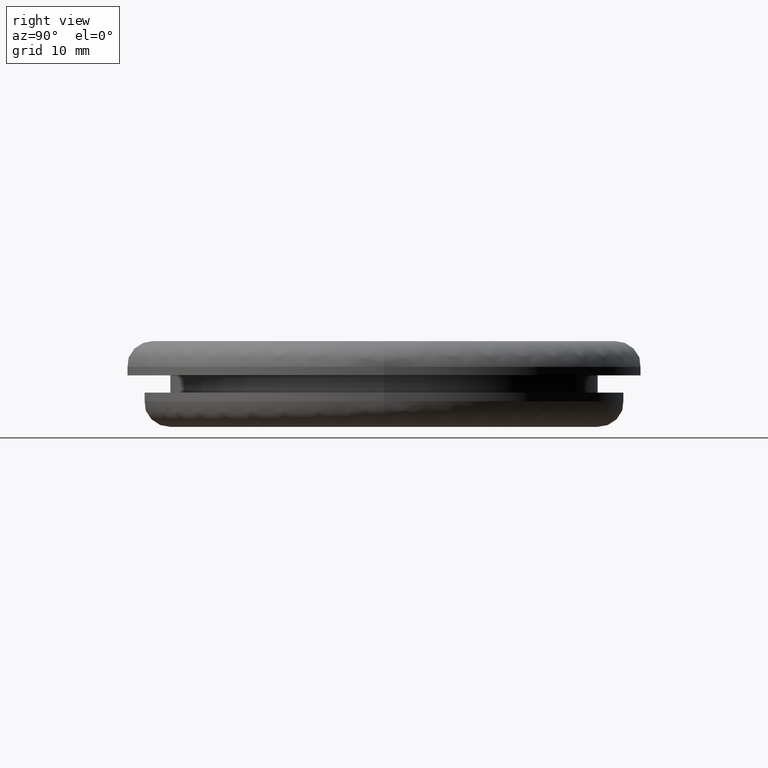
[diagram: clean part render]
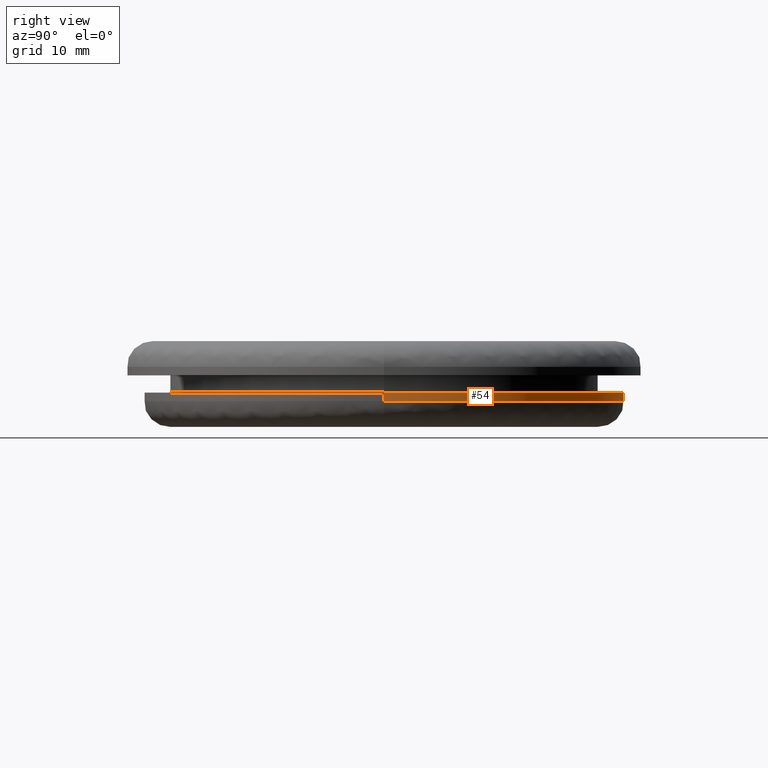
[diagram: same view with one face highlighted and labeled with its STEP entity id]
A machine part, right view. The second image highlights one B-rep face of the part: STEP entity #54.
In plain terms, the highlighted cylindrical surface (partial cylindrical patch) has radius 28 mm, axis along (0, -0, 1).
Its self-contained STEP definition (entity closure, byte-faithful):
#54=ADVANCED_FACE('',(#205),#204,.T.);
#204=CYLINDRICAL_SURFACE('',#383,2.80000000000E+01);
#205=FACE_OUTER_BOUND('',#384,.T.);
#380=CARTESIAN_POINT('',(-1.19371179608E-12,0.00000000000E+00,0.00000000000E+00));
#381=DIRECTION('',(0.00000000000E+00,-0.00000000000E+00,1.00000000000E+00));
#382=DIRECTION('',(1.00000000000E+00,-0.00000000000E+00,-0.00000000000E+00));
#383=AXIS2_PLACEMENT_3D('',#380,#381,#382);
#384=EDGE_LOOP('',(#504,#505,#506,#507));
#504=ORIENTED_EDGE('',*,*,#541,.T.);
#505=ORIENTED_EDGE('',*,*,#558,.F.);
#506=ORIENTED_EDGE('',*,*,#559,.F.);
#507=ORIENTED_EDGE('',*,*,#560,.T.);
#541=EDGE_CURVE('',#651,#650,#658,.T.);
#558=EDGE_CURVE('',#768,#650,#769,.T.);
#559=EDGE_CURVE('',#775,#768,#776,.T.);
#560=EDGE_CURVE('',#775,#651,#782,.T.);
#650=VERTEX_POINT('',#878);
#651=VERTEX_POINT('',#879);
#658=CIRCLE('',#887,2.80000000000E+01);
#768=VERTEX_POINT('',#948);
#769=(BOUNDED_CURVE() B_SPLINE_CURVE(1,(#949,#950),.UNSPECIFIED.,.F.,.F.) B_SPLINE_CURVE_WITH_KNOTS((2,2),(8.33332935974E-02,9.16666633252E-01),.UNSPECIFIED.) CURVE() GEOMETRIC_REPRESENTATION_ITEM() RATIONAL_B_SPLINE_CURVE((1.00000000000E+00,1.00000000000E+00)) REPRESENTATION_ITEM('') );
#775=VERTEX_POINT('',#951);
#776=CIRCLE('',#955,2.80000000000E+01);
#782=(BOUNDED_CURVE() B_SPLINE_CURVE(1,(#956,#957),.UNSPECIFIED.,.F.,.F.) B_SPLINE_CURVE_WITH_KNOTS((2,2),(8.33333333333E-02,9.16666666667E-01),.UNSPECIFIED.) CURVE() GEOMETRIC_REPRESENTATION_ITEM() RATIONAL_B_SPLINE_CURVE((7.50000000000E-01,7.50000000000E-01)) REPRESENTATION_ITEM('') );
#878=CARTESIAN_POINT('',(2.80000000000E+01,1.18423789293E-15,-6.00000000001E+00));
#879=CARTESIAN_POINT('',(-2.80000000000E+01,0.00000000000E+00,-6.00000000001E+00));
#884=CARTESIAN_POINT('',(-1.19371179608E-12,0.00000000000E+00,-6.00000000001E+00));
#885=DIRECTION('',(-0.00000000000E+00,0.00000000000E+00,-1.00000000000E+00));
#886=DIRECTION('',(-1.00000000000E+00,-1.22460635382E-16,0.00000000000E+00));
#887=AXIS2_PLACEMENT_3D('',#884,#885,#886);
#948=CARTESIAN_POINT('',(2.80000000000E+01,1.18423789293E-15,-7.00000000000E+00));
#949=CARTESIAN_POINT('',(2.80000000000E+01,0.00000000000E+00,-7.00000004768E+00));
#950=CARTESIAN_POINT('',(2.80000000000E+01,0.00000000000E+00,-6.00000004010E+00));
#951=CARTESIAN_POINT('',(-2.80000000000E+01,0.00000000000E+00,-7.00000000000E+00));
#952=CARTESIAN_POINT('',(-1.19371179608E-12,0.00000000000E+00,-7.00000000000E+00));
#953=DIRECTION('',(-0.00000000000E+00,0.00000000000E+00,-1.00000000000E+00));
#954=DIRECTION('',(-1.00000000000E+00,-1.22460635382E-16,0.00000000000E+00));
#955=AXIS2_PLACEMENT_3D('',#952,#953,#954);
#956=CARTESIAN_POINT('',(-2.80000000000E+01,0.00000000000E+00,-7.00000000000E+00));
#957=CARTESIAN_POINT('',(-2.80000000000E+01,0.00000000000E+00,-6.00000000001E+00));